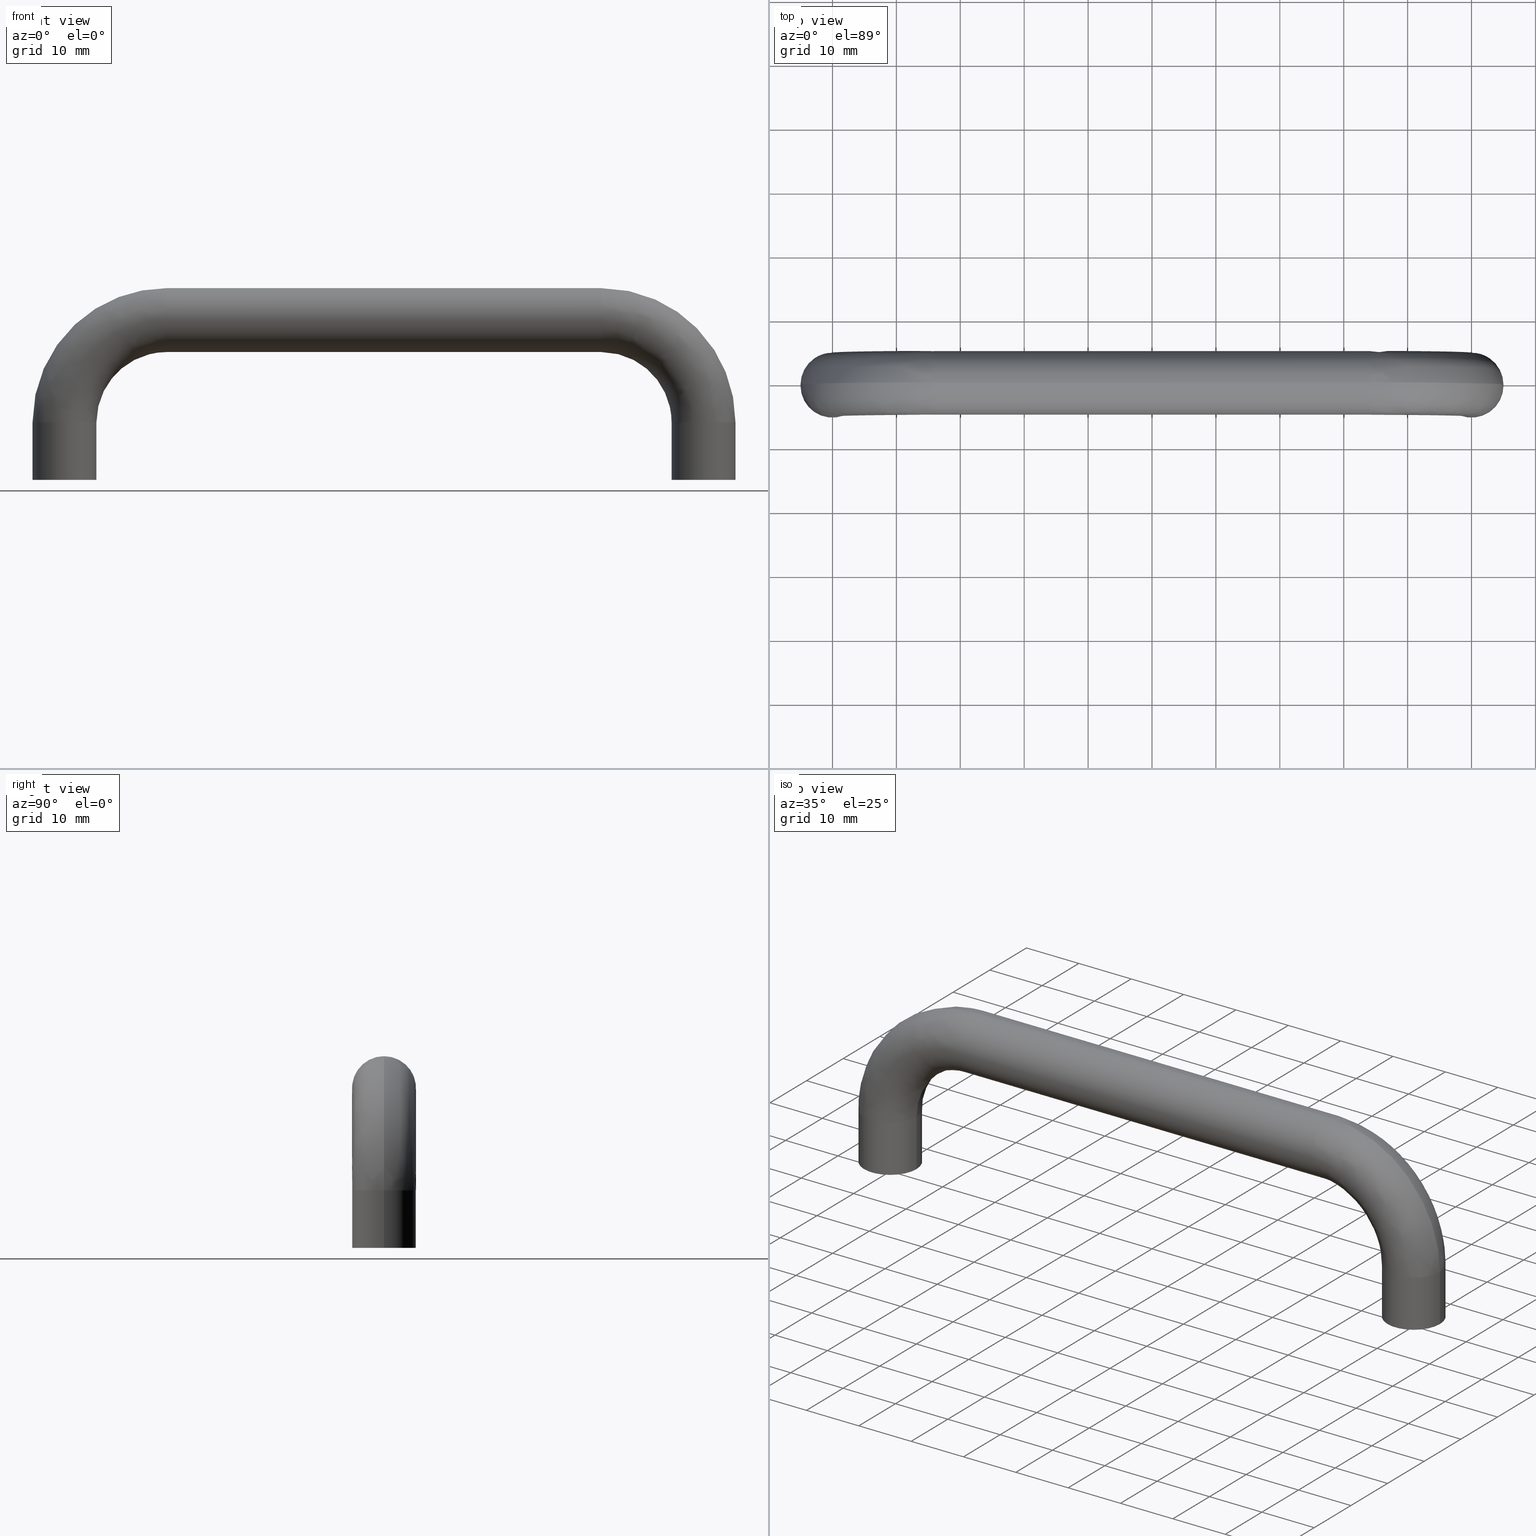
[diagram: canonical four-view strip — front | top / right | iso, engineering-drawing reading convention]
A machine part, canonical four-view strip (front | top / right | iso — engineering-drawing reading convention). The complete STEP part file that produces these views, byte-faithful:
ISO-10303-21;
HEADER;

FILE_DESCRIPTION( (''), '2;1');
FILE_NAME ('PC50.1864.THA_31SUS_7_TAP_4049.stp','2021-09-06T11:38:39',(''),(''),'spGate 17.5.2','','');

FILE_SCHEMA (('AUTOMOTIVE_DESIGN'));
ENDSEC;

DATA;
#10=(GEOMETRIC_REPRESENTATION_CONTEXT(3) GLOBAL_UNCERTAINTY_ASSIGNED_CONTEXT((#11)) GLOBAL_UNIT_ASSIGNED_CONTEXT((#12,#13,#14)) REPRESENTATION_CONTEXT('ID1','3D'));
#11=UNCERTAINTY_MEASURE_WITH_UNIT(LENGTH_MEASURE(0.01),#15,'DISTANCE_ACCURACY_VALUE','Maximum model space distance between geometric entities at asserted connectivities');
#12=(NAMED_UNIT(*) SI_UNIT($,.STERADIAN.) SOLID_ANGLE_UNIT());
#13=(CONVERSION_BASED_UNIT('DEGREE',#16) NAMED_UNIT(#17) PLANE_ANGLE_UNIT());
#14=(LENGTH_UNIT() NAMED_UNIT(*) SI_UNIT(.MILLI.,.METRE.));
#15=(LENGTH_UNIT() NAMED_UNIT(*) SI_UNIT(.MILLI.,.METRE.));
#16=PLANE_ANGLE_MEASURE_WITH_UNIT(PLANE_ANGLE_MEASURE(0.01745329252),#18);
#17=DIMENSIONAL_EXPONENTS(0.0,0.0,0.0,0.0,0.0,0.0,0.0);
#18=(NAMED_UNIT(*) PLANE_ANGLE_UNIT() SI_UNIT($,.RADIAN.));
#19=MANIFOLD_SOLID_BREP('THA_31SUS_7_TAP',#31);
#20=ADVANCED_BREP_SHAPE_REPRESENTATION('',(#19),#10);
#21=APPLICATION_CONTEXT('');
#22=APPLICATION_PROTOCOL_DEFINITION('International Standard','automotive_design',1999,#21);
#23=PRODUCT_DEFINITION_CONTEXT('',#21,'design');
#24=PRODUCT_CONTEXT('',#21,'mechanical');
#25=PRODUCT('','','',(#24));
#26=PRODUCT_DEFINITION_FORMATION_WITH_SPECIFIED_SOURCE('','',#25,.NOT_KNOWN.);
#27=PRODUCT_RELATED_PRODUCT_CATEGORY('tool','tool',(#25));
#28=PRODUCT_DEFINITION('','',#26,#23);
#29=PRODUCT_DEFINITION_SHAPE('','',#28);
#30=SHAPE_DEFINITION_REPRESENTATION(#29,#20);
#31=CLOSED_SHELL('',(#40,#41,#42,#43,#44,#45,#46,#47,#48,#49,#50,#51,#52,#53,#54,#55,#56,#57));
#32=COLOUR_RGB('',0.00000000000E+00,0.00000000000E+00,0.00000000000E+00);
#33=FILL_AREA_STYLE_COLOUR('',#32);
#34=FILL_AREA_STYLE('',(#33));
#35=SURFACE_STYLE_FILL_AREA(#34);
#36=SURFACE_SIDE_STYLE('',(#35));
#37=SURFACE_STYLE_USAGE(.BOTH.,#36);
#38=PRESENTATION_STYLE_ASSIGNMENT((#37));
#39=STYLED_ITEM('',(#38),#19);
#40=ADVANCED_FACE('',(#59,#60),#58,.F.);
#41=ADVANCED_FACE('',(#70),#69,.F.);
#42=ADVANCED_FACE('',(#80),#79,.F.);
#43=ADVANCED_FACE('',(#90,#91),#89,.F.);
#44=ADVANCED_FACE('',(#101),#100,.T.);
#45=ADVANCED_FACE('',(#111),#110,.T.);
#46=ADVANCED_FACE('',(#121),#120,.T.);
#47=ADVANCED_FACE('',(#131),#130,.T.);
#48=ADVANCED_FACE('',(#141),#140,.T.);
#49=ADVANCED_FACE('',(#151),#150,.T.);
#50=ADVANCED_FACE('',(#161),#160,.T.);
#51=ADVANCED_FACE('',(#171),#170,.T.);
#52=ADVANCED_FACE('',(#181),#180,.F.);
#53=ADVANCED_FACE('',(#191),#190,.F.);
#54=ADVANCED_FACE('',(#201),#200,.T.);
#55=ADVANCED_FACE('',(#211),#210,.T.);
#56=ADVANCED_FACE('',(#221),#220,.F.);
#57=ADVANCED_FACE('',(#231),#230,.F.);
#58=PLANE('',#243);
#59=FACE_OUTER_BOUND('',#244,.T.);
#60=FACE_BOUND('',#245,.T.);
#61=COLOUR_RGB('',1.00000000000E+00,1.00000000000E+00,1.00000000000E+00);
#62=FILL_AREA_STYLE_COLOUR('',#61);
#63=FILL_AREA_STYLE('',(#62));
#64=SURFACE_STYLE_FILL_AREA(#63);
#65=SURFACE_SIDE_STYLE('',(#64));
#66=SURFACE_STYLE_USAGE(.BOTH.,#65);
#67=PRESENTATION_STYLE_ASSIGNMENT((#66));
#68=STYLED_ITEM('',(#67),#40);
#69=PLANE('',#249);
#70=FACE_OUTER_BOUND('',#250,.T.);
#71=COLOUR_RGB('',1.00000000000E+00,1.00000000000E+00,1.00000000000E+00);
#72=FILL_AREA_STYLE_COLOUR('',#71);
#73=FILL_AREA_STYLE('',(#72));
#74=SURFACE_STYLE_FILL_AREA(#73);
#75=SURFACE_SIDE_STYLE('',(#74));
#76=SURFACE_STYLE_USAGE(.BOTH.,#75);
#77=PRESENTATION_STYLE_ASSIGNMENT((#76));
#78=STYLED_ITEM('',(#77),#41);
#79=PLANE('',#254);
#80=FACE_OUTER_BOUND('',#255,.T.);
#81=COLOUR_RGB('',1.00000000000E+00,1.00000000000E+00,1.00000000000E+00);
#82=FILL_AREA_STYLE_COLOUR('',#81);
#83=FILL_AREA_STYLE('',(#82));
#84=SURFACE_STYLE_FILL_AREA(#83);
#85=SURFACE_SIDE_STYLE('',(#84));
#86=SURFACE_STYLE_USAGE(.BOTH.,#85);
#87=PRESENTATION_STYLE_ASSIGNMENT((#86));
#88=STYLED_ITEM('',(#87),#42);
#89=PLANE('',#259);
#90=FACE_OUTER_BOUND('',#260,.T.);
#91=FACE_BOUND('',#261,.T.);
#92=COLOUR_RGB('',1.00000000000E+00,1.00000000000E+00,1.00000000000E+00);
#93=FILL_AREA_STYLE_COLOUR('',#92);
#94=FILL_AREA_STYLE('',(#93));
#95=SURFACE_STYLE_FILL_AREA(#94);
#96=SURFACE_SIDE_STYLE('',(#95));
#97=SURFACE_STYLE_USAGE(.BOTH.,#96);
#98=PRESENTATION_STYLE_ASSIGNMENT((#97));
#99=STYLED_ITEM('',(#98),#43);
#100=( BOUNDED_SURFACE() B_SPLINE_SURFACE( 2,2,((#262,#263,#264,#265,#266),(#267,#268,#269,#270,#271),(#272,#273,#274,#275,#276),(#277,#278,#279,#280,#281),(#282,#283,#284,#285,#286)), .UNSPECIFIED.,.F.,.F.,.F.) B_SPLINE_SURFACE_WITH_KNOTS((3,2,3),(3,2,3),(-3.14159265359E+00,-1.57079632679E+00,0.00000000000E+00),(2.35619449019E+00,3.14159265359E+00,3.92699081699E+00), .UNSPECIFIED. ) GEOMETRIC_REPRESENTATION_ITEM() RATIONAL_B_SPLINE_SURFACE(((8.53553390593E-01,8.53553390593E-01,1.00000000000E+00,8.53553390593E-01,8.53553390593E-01),(6.03553390593E-01,6.03553390593E-01,7.07106781187E-01,6.03553390593E-01,6.03553390593E-01),(8.53553390593E-01,8.53553390593E-01,1.00000000000E+00,8.53553390593E-01,8.53553390593E-01),(6.03553390593E-01,6.03553390593E-01,7.07106781187E-01,6.03553390593E-01,6.03553390593E-01),(8.53553390593E-01,8.53553390593E-01,1.00000000000E+00,8.53553390593E-01,8.53553390593E-01))) REPRESENTATION_ITEM('') SURFACE() );
#101=FACE_OUTER_BOUND('',#287,.T.);
#102=COLOUR_RGB('',1.00000000000E+00,1.00000000000E+00,1.00000000000E+00);
#103=FILL_AREA_STYLE_COLOUR('',#102);
#104=FILL_AREA_STYLE('',(#103));
#105=SURFACE_STYLE_FILL_AREA(#104);
#106=SURFACE_SIDE_STYLE('',(#105));
#107=SURFACE_STYLE_USAGE(.BOTH.,#106);
#108=PRESENTATION_STYLE_ASSIGNMENT((#107));
#109=STYLED_ITEM('',(#108),#44);
#110=( BOUNDED_SURFACE() B_SPLINE_SURFACE( 2,2,((#288,#289,#290,#291,#292),(#293,#294,#295,#296,#297),(#298,#299,#300,#301,#302),(#303,#304,#305,#306,#307),(#308,#309,#310,#311,#312)), .UNSPECIFIED.,.F.,.F.,.F.) B_SPLINE_SURFACE_WITH_KNOTS((3,2,3),(3,2,3),(0.00000000000E+00,1.57079632679E+00,3.14159265359E+00),(2.35619449019E+00,3.14159265359E+00,3.92699081699E+00), .UNSPECIFIED. ) GEOMETRIC_REPRESENTATION_ITEM() RATIONAL_B_SPLINE_SURFACE(((8.53553390593E-01,8.53553390593E-01,1.00000000000E+00,8.53553390593E-01,8.53553390593E-01),(6.03553390593E-01,6.03553390593E-01,7.07106781187E-01,6.03553390593E-01,6.03553390593E-01),(8.53553390593E-01,8.53553390593E-01,1.00000000000E+00,8.53553390593E-01,8.53553390593E-01),(6.03553390593E-01,6.03553390593E-01,7.07106781187E-01,6.03553390593E-01,6.03553390593E-01),(8.53553390593E-01,8.53553390593E-01,1.00000000000E+00,8.53553390593E-01,8.53553390593E-01))) REPRESENTATION_ITEM('') SURFACE() );
#111=FACE_OUTER_BOUND('',#313,.T.);
#112=COLOUR_RGB('',1.00000000000E+00,1.00000000000E+00,1.00000000000E+00);
#113=FILL_AREA_STYLE_COLOUR('',#112);
#114=FILL_AREA_STYLE('',(#113));
#115=SURFACE_STYLE_FILL_AREA(#114);
#116=SURFACE_SIDE_STYLE('',(#115));
#117=SURFACE_STYLE_USAGE(.BOTH.,#116);
#118=PRESENTATION_STYLE_ASSIGNMENT((#117));
#119=STYLED_ITEM('',(#118),#45);
#120=CYLINDRICAL_SURFACE('',#317,5.00000000000E+00);
#121=FACE_OUTER_BOUND('',#318,.T.);
#122=COLOUR_RGB('',1.00000000000E+00,1.00000000000E+00,1.00000000000E+00);
#123=FILL_AREA_STYLE_COLOUR('',#122);
#124=FILL_AREA_STYLE('',(#123));
#125=SURFACE_STYLE_FILL_AREA(#124);
#126=SURFACE_SIDE_STYLE('',(#125));
#127=SURFACE_STYLE_USAGE(.BOTH.,#126);
#128=PRESENTATION_STYLE_ASSIGNMENT((#127));
#129=STYLED_ITEM('',(#128),#46);
#130=CYLINDRICAL_SURFACE('',#322,5.00000000000E+00);
#131=FACE_OUTER_BOUND('',#323,.T.);
#132=COLOUR_RGB('',1.00000000000E+00,1.00000000000E+00,1.00000000000E+00);
#133=FILL_AREA_STYLE_COLOUR('',#132);
#134=FILL_AREA_STYLE('',(#133));
#135=SURFACE_STYLE_FILL_AREA(#134);
#136=SURFACE_SIDE_STYLE('',(#135));
#137=SURFACE_STYLE_USAGE(.BOTH.,#136);
#138=PRESENTATION_STYLE_ASSIGNMENT((#137));
#139=STYLED_ITEM('',(#138),#47);
#140=( BOUNDED_SURFACE() B_SPLINE_SURFACE( 2,2,((#324,#325,#326,#327,#328,#329,#330),(#331,#332,#333,#334,#335,#336,#337),(#338,#339,#340,#341,#342,#343,#344),(#345,#346,#347,#348,#349,#350,#351),(#352,#353,#354,#355,#356,#357,#358)), .UNSPECIFIED.,.F.,.F.,.F.) B_SPLINE_SURFACE_WITH_KNOTS((3,2,3),(3,2,2,3),(-3.14159265359E+00,-1.57079632679E+00,0.00000000000E+00),(1.56981901998E+00,1.57079632679E+00,3.14159265359E+00,3.14256996040E+00), .UNSPECIFIED. ) GEOMETRIC_REPRESENTATION_ITEM() RATIONAL_B_SPLINE_SURFACE(((9.99635766346E-01,9.99817769794E-01,1.00000000000E+00,7.07106781187E-01,1.00000000000E+00,9.99817769794E-01,9.99635766346E-01),(7.06849229100E-01,7.06977924972E-01,7.07106781187E-01,5.00000000000E-01,7.07106781187E-01,7.06977924972E-01,7.06849229100E-01),(9.99635766346E-01,9.99817769794E-01,1.00000000000E+00,7.07106781187E-01,1.00000000000E+00,9.99817769794E-01,9.99635766346E-01),(7.06849229100E-01,7.06977924972E-01,7.07106781187E-01,5.00000000000E-01,7.07106781187E-01,7.06977924972E-01,7.06849229100E-01),(9.99635766346E-01,9.99817769794E-01,1.00000000000E+00,7.07106781187E-01,1.00000000000E+00,9.99817769794E-01,9.99635766346E-01))) REPRESENTATION_ITEM('') SURFACE() );
#141=FACE_OUTER_BOUND('',#359,.T.);
#142=COLOUR_RGB('',1.00000000000E+00,1.00000000000E+00,1.00000000000E+00);
#143=FILL_AREA_STYLE_COLOUR('',#142);
#144=FILL_AREA_STYLE('',(#143));
#145=SURFACE_STYLE_FILL_AREA(#144);
#146=SURFACE_SIDE_STYLE('',(#145));
#147=SURFACE_STYLE_USAGE(.BOTH.,#146);
#148=PRESENTATION_STYLE_ASSIGNMENT((#147));
#149=STYLED_ITEM('',(#148),#48);
#150=( BOUNDED_SURFACE() B_SPLINE_SURFACE( 2,2,((#360,#361,#362,#363,#364,#365,#366),(#367,#368,#369,#370,#371,#372,#373),(#374,#375,#376,#377,#378,#379,#380),(#381,#382,#383,#384,#385,#386,#387),(#388,#389,#390,#391,#392,#393,#394)), .UNSPECIFIED.,.F.,.F.,.F.) B_SPLINE_SURFACE_WITH_KNOTS((3,2,3),(3,2,2,3),(0.00000000000E+00,1.57079632679E+00,3.14159265359E+00),(1.56981901998E+00,1.57079632679E+00,3.14159265359E+00,3.14256996040E+00), .UNSPECIFIED. ) GEOMETRIC_REPRESENTATION_ITEM() RATIONAL_B_SPLINE_SURFACE(((9.99635766346E-01,9.99817769794E-01,1.00000000000E+00,7.07106781187E-01,1.00000000000E+00,9.99817769794E-01,9.99635766346E-01),(7.06849229100E-01,7.06977924972E-01,7.07106781187E-01,5.00000000000E-01,7.07106781187E-01,7.06977924972E-01,7.06849229100E-01),(9.99635766346E-01,9.99817769794E-01,1.00000000000E+00,7.07106781187E-01,1.00000000000E+00,9.99817769794E-01,9.99635766346E-01),(7.06849229100E-01,7.06977924972E-01,7.07106781187E-01,5.00000000000E-01,7.07106781187E-01,7.06977924972E-01,7.06849229100E-01),(9.99635766346E-01,9.99817769794E-01,1.00000000000E+00,7.07106781187E-01,1.00000000000E+00,9.99817769794E-01,9.99635766346E-01))) REPRESENTATION_ITEM('') SURFACE() );
#151=FACE_OUTER_BOUND('',#395,.T.);
#152=COLOUR_RGB('',1.00000000000E+00,1.00000000000E+00,1.00000000000E+00);
#153=FILL_AREA_STYLE_COLOUR('',#152);
#154=FILL_AREA_STYLE('',(#153));
#155=SURFACE_STYLE_FILL_AREA(#154);
#156=SURFACE_SIDE_STYLE('',(#155));
#157=SURFACE_STYLE_USAGE(.BOTH.,#156);
#158=PRESENTATION_STYLE_ASSIGNMENT((#157));
#159=STYLED_ITEM('',(#158),#49);
#160=CYLINDRICAL_SURFACE('',#399,5.00000000000E+00);
#161=FACE_OUTER_BOUND('',#400,.T.);
#162=COLOUR_RGB('',1.00000000000E+00,1.00000000000E+00,1.00000000000E+00);
#163=FILL_AREA_STYLE_COLOUR('',#162);
#164=FILL_AREA_STYLE('',(#163));
#165=SURFACE_STYLE_FILL_AREA(#164);
#166=SURFACE_SIDE_STYLE('',(#165));
#167=SURFACE_STYLE_USAGE(.BOTH.,#166);
#168=PRESENTATION_STYLE_ASSIGNMENT((#167));
#169=STYLED_ITEM('',(#168),#50);
#170=CYLINDRICAL_SURFACE('',#404,5.00000000000E+00);
#171=FACE_OUTER_BOUND('',#405,.T.);
#172=COLOUR_RGB('',1.00000000000E+00,1.00000000000E+00,1.00000000000E+00);
#173=FILL_AREA_STYLE_COLOUR('',#172);
#174=FILL_AREA_STYLE('',(#173));
#175=SURFACE_STYLE_FILL_AREA(#174);
#176=SURFACE_SIDE_STYLE('',(#175));
#177=SURFACE_STYLE_USAGE(.BOTH.,#176);
#178=PRESENTATION_STYLE_ASSIGNMENT((#177));
#179=STYLED_ITEM('',(#178),#51);
#180=CYLINDRICAL_SURFACE('',#409,2.50000000000E+00);
#181=FACE_OUTER_BOUND('',#410,.T.);
#182=COLOUR_RGB('',1.00000000000E+00,1.00000000000E+00,1.00000000000E+00);
#183=FILL_AREA_STYLE_COLOUR('',#182);
#184=FILL_AREA_STYLE('',(#183));
#185=SURFACE_STYLE_FILL_AREA(#184);
#186=SURFACE_SIDE_STYLE('',(#185));
#187=SURFACE_STYLE_USAGE(.BOTH.,#186);
#188=PRESENTATION_STYLE_ASSIGNMENT((#187));
#189=STYLED_ITEM('',(#188),#52);
#190=CYLINDRICAL_SURFACE('',#414,2.50000000000E+00);
#191=FACE_OUTER_BOUND('',#415,.T.);
#192=COLOUR_RGB('',1.00000000000E+00,1.00000000000E+00,1.00000000000E+00);
#193=FILL_AREA_STYLE_COLOUR('',#192);
#194=FILL_AREA_STYLE('',(#193));
#195=SURFACE_STYLE_FILL_AREA(#194);
#196=SURFACE_SIDE_STYLE('',(#195));
#197=SURFACE_STYLE_USAGE(.BOTH.,#196);
#198=PRESENTATION_STYLE_ASSIGNMENT((#197));
#199=STYLED_ITEM('',(#198),#53);
#200=CYLINDRICAL_SURFACE('',#419,5.00000000000E+00);
#201=FACE_OUTER_BOUND('',#420,.T.);
#202=COLOUR_RGB('',1.00000000000E+00,1.00000000000E+00,1.00000000000E+00);
#203=FILL_AREA_STYLE_COLOUR('',#202);
#204=FILL_AREA_STYLE('',(#203));
#205=SURFACE_STYLE_FILL_AREA(#204);
#206=SURFACE_SIDE_STYLE('',(#205));
#207=SURFACE_STYLE_USAGE(.BOTH.,#206);
#208=PRESENTATION_STYLE_ASSIGNMENT((#207));
#209=STYLED_ITEM('',(#208),#54);
#210=CYLINDRICAL_SURFACE('',#424,5.00000000000E+00);
#211=FACE_OUTER_BOUND('',#425,.T.);
#212=COLOUR_RGB('',1.00000000000E+00,1.00000000000E+00,1.00000000000E+00);
#213=FILL_AREA_STYLE_COLOUR('',#212);
#214=FILL_AREA_STYLE('',(#213));
#215=SURFACE_STYLE_FILL_AREA(#214);
#216=SURFACE_SIDE_STYLE('',(#215));
#217=SURFACE_STYLE_USAGE(.BOTH.,#216);
#218=PRESENTATION_STYLE_ASSIGNMENT((#217));
#219=STYLED_ITEM('',(#218),#55);
#220=CYLINDRICAL_SURFACE('',#429,2.50000000000E+00);
#221=FACE_OUTER_BOUND('',#430,.T.);
#222=COLOUR_RGB('',1.00000000000E+00,1.00000000000E+00,1.00000000000E+00);
#223=FILL_AREA_STYLE_COLOUR('',#222);
#224=FILL_AREA_STYLE('',(#223));
#225=SURFACE_STYLE_FILL_AREA(#224);
#226=SURFACE_SIDE_STYLE('',(#225));
#227=SURFACE_STYLE_USAGE(.BOTH.,#226);
#228=PRESENTATION_STYLE_ASSIGNMENT((#227));
#229=STYLED_ITEM('',(#228),#56);
#230=CYLINDRICAL_SURFACE('',#434,2.50000000000E+00);
#231=FACE_OUTER_BOUND('',#435,.T.);
#232=COLOUR_RGB('',1.00000000000E+00,1.00000000000E+00,1.00000000000E+00);
#233=FILL_AREA_STYLE_COLOUR('',#232);
#234=FILL_AREA_STYLE('',(#233));
#235=SURFACE_STYLE_FILL_AREA(#234);
#236=SURFACE_SIDE_STYLE('',(#235));
#237=SURFACE_STYLE_USAGE(.BOTH.,#236);
#238=PRESENTATION_STYLE_ASSIGNMENT((#237));
#239=STYLED_ITEM('',(#238),#57);
#240=CARTESIAN_POINT('',(4.35000000000E+01,-1.03923048455E+01,-2.00000000000E+01));
#241=DIRECTION('',(0.00000000000E+00,0.00000000000E+00,1.00000000000E+00));
#242=DIRECTION('',(1.00000000000E+00,0.00000000000E+00,-0.00000000000E+00));
#243=AXIS2_PLACEMENT_3D('',#240,#241,#242);
#244=EDGE_LOOP('',(#436,#437));
#245=EDGE_LOOP('',(#438,#439));
#246=CARTESIAN_POINT('',(-4.42500000000E+01,5.19615242276E+00,-9.00000000000E+00));
#247=DIRECTION('',(0.00000000000E+00,0.00000000000E+00,1.00000000000E+00));
#248=DIRECTION('',(-1.00000000000E+00,0.00000000000E+00,0.00000000000E+00));
#249=AXIS2_PLACEMENT_3D('',#246,#247,#248);
#250=EDGE_LOOP('',(#440,#441));
#251=CARTESIAN_POINT('',(4.67500000000E+01,-5.19615242265E+00,-9.00000000000E+00));
#252=DIRECTION('',(0.00000000000E+00,-0.00000000000E+00,1.00000000000E+00));
#253=DIRECTION('',(1.00000000000E+00,0.00000000000E+00,0.00000000000E+00));
#254=AXIS2_PLACEMENT_3D('',#251,#252,#253);
#255=EDGE_LOOP('',(#442,#443));
#256=CARTESIAN_POINT('',(-3.85000000000E+01,1.03923048453E+01,-2.00000000000E+01));
#257=DIRECTION('',(0.00000000000E+00,0.00000000000E+00,1.00000000000E+00));
#258=DIRECTION('',(-1.00000000000E+00,0.00000000000E+00,0.00000000000E+00));
#259=AXIS2_PLACEMENT_3D('',#256,#257,#258);
#260=EDGE_LOOP('',(#444,#445));
#261=EDGE_LOOP('',(#446,#447));
#262=CARTESIAN_POINT('',(-4.50000000000E+01,-9.33678950984E-11,-1.10000000000E+01));
#263=CARTESIAN_POINT('',(-4.50000000000E+01,-9.33651317356E-11,-6.44365081390E+00));
#264=CARTESIAN_POINT('',(-4.17781745931E+01,-9.33639871133E-11,-3.22182540696E+00));
#265=CARTESIAN_POINT('',(-3.85563491861E+01,-9.33628424910E-11,1.55876748587E-12));
#266=CARTESIAN_POINT('',(-3.40000000000E+01,-9.33639871133E-11,1.55668635438E-12));
#267=CARTESIAN_POINT('',(-4.50000000000E+01,4.99999999991E+00,-1.10000000000E+01));
#268=CARTESIAN_POINT('',(-4.50000000000E+01,4.99999999991E+00,-6.44365081390E+00));
#269=CARTESIAN_POINT('',(-4.17781745931E+01,4.99999999991E+00,-3.22182540696E+00));
#270=CARTESIAN_POINT('',(-3.85563491861E+01,4.99999999991E+00,1.55399079157E-12));
#271=CARTESIAN_POINT('',(-3.40000000000E+01,4.99999999991E+00,1.55104762719E-12));
#272=CARTESIAN_POINT('',(-5.00000000000E+01,4.99999999991E+00,-1.10000000000E+01));
#273=CARTESIAN_POINT('',(-5.00000000000E+01,4.99999999991E+00,-4.37258300204E+00));
#274=CARTESIAN_POINT('',(-4.53137084990E+01,4.99999999991E+00,3.13708498972E-01));
#275=CARTESIAN_POINT('',(-4.06274169980E+01,4.99999999991E+00,5.00000000000E+00));
#276=CARTESIAN_POINT('',(-3.40000000000E+01,4.99999999991E+00,5.00000000000E+00));
#277=CARTESIAN_POINT('',(-5.50000000000E+01,4.99999999991E+00,-1.10000000000E+01));
#278=CARTESIAN_POINT('',(-5.50000000000E+01,4.99999999991E+00,-2.30151519018E+00));
#279=CARTESIAN_POINT('',(-4.88492424049E+01,4.99999999991E+00,3.84924240490E+00));
#280=CARTESIAN_POINT('',(-4.26984848098E+01,4.99999999991E+00,1.00000000000E+01));
#281=CARTESIAN_POINT('',(-3.40000000000E+01,4.99999999991E+00,1.00000000000E+01));
#282=CARTESIAN_POINT('',(-5.50000000000E+01,-9.33659952536E-11,-1.10000000000E+01));
#283=CARTESIAN_POINT('',(-5.50000000000E+01,-9.33607197429E-11,-2.30151519018E+00));
#284=CARTESIAN_POINT('',(-4.88492424049E+01,-9.33585345549E-11,3.84924240490E+00));
#285=CARTESIAN_POINT('',(-4.26984848098E+01,-9.33563493668E-11,1.00000000000E+01));
#286=CARTESIAN_POINT('',(-3.40000000000E+01,-9.33585345549E-11,1.00000000000E+01));
#287=EDGE_LOOP('',(#448,#449,#450,#451));
#288=CARTESIAN_POINT('',(-5.50000000000E+01,-9.33659952536E-11,-1.10000000000E+01));
#289=CARTESIAN_POINT('',(-5.50000000000E+01,-9.33607197429E-11,-2.30151519018E+00));
#290=CARTESIAN_POINT('',(-4.88492424049E+01,-9.33585345549E-11,3.84924240490E+00));
#291=CARTESIAN_POINT('',(-4.26984848098E+01,-9.33563493668E-11,1.00000000000E+01));
#292=CARTESIAN_POINT('',(-3.40000000000E+01,-9.33585345549E-11,1.00000000000E+01));
#293=CARTESIAN_POINT('',(-5.50000000000E+01,-5.00000000009E+00,-1.10000000000E+01));
#294=CARTESIAN_POINT('',(-5.50000000000E+01,-5.00000000009E+00,-2.30151519018E+00));
#295=CARTESIAN_POINT('',(-4.88492424049E+01,-5.00000000009E+00,3.84924240490E+00));
#296=CARTESIAN_POINT('',(-4.26984848098E+01,-5.00000000009E+00,1.00000000000E+01));
#297=CARTESIAN_POINT('',(-3.40000000000E+01,-5.00000000009E+00,1.00000000000E+01));
#298=CARTESIAN_POINT('',(-5.00000000000E+01,-5.00000000009E+00,-1.10000000000E+01));
#299=CARTESIAN_POINT('',(-5.00000000000E+01,-5.00000000009E+00,-4.37258300204E+00));
#300=CARTESIAN_POINT('',(-4.53137084990E+01,-5.00000000009E+00,3.13708498972E-01));
#301=CARTESIAN_POINT('',(-4.06274169980E+01,-5.00000000009E+00,5.00000000000E+00));
#302=CARTESIAN_POINT('',(-3.40000000000E+01,-5.00000000009E+00,5.00000000000E+00));
#303=CARTESIAN_POINT('',(-4.50000000000E+01,-5.00000000009E+00,-1.10000000000E+01));
#304=CARTESIAN_POINT('',(-4.50000000000E+01,-5.00000000009E+00,-6.44365081390E+00));
#305=CARTESIAN_POINT('',(-4.17781745931E+01,-5.00000000009E+00,-3.22182540696E+00));
#306=CARTESIAN_POINT('',(-3.85563491861E+01,-5.00000000009E+00,1.55840553814E-12));
#307=CARTESIAN_POINT('',(-3.40000000000E+01,-5.00000000009E+00,1.55987712033E-12));
#308=CARTESIAN_POINT('',(-4.50000000000E+01,-9.33691197047E-11,-1.10000000000E+01));
#309=CARTESIAN_POINT('',(-4.50000000000E+01,-9.33663563420E-11,-6.44365081390E+00));
#310=CARTESIAN_POINT('',(-4.17781745931E+01,-9.33652117197E-11,-3.22182540696E+00));
#311=CARTESIAN_POINT('',(-3.85563491861E+01,-9.33640670973E-11,1.55460522289E-12));
#312=CARTESIAN_POINT('',(-3.40000000000E+01,-9.33652117197E-11,1.55668635438E-12));
#313=EDGE_LOOP('',(#452,#453,#454,#455));
#314=CARTESIAN_POINT('',(0.00000000000E+00,-9.33367966249E-11,5.00000000000E+00));
#315=DIRECTION('',(1.00000000000E+00,-0.00000000000E+00,-0.00000000000E+00));
#316=DIRECTION('',(-0.00000000000E+00,-0.00000000000E+00,-1.00000000000E+00));
#317=AXIS2_PLACEMENT_3D('',#314,#315,#316);
#318=EDGE_LOOP('',(#456,#457,#458,#459));
#319=CARTESIAN_POINT('',(0.00000000000E+00,-9.33367966249E-11,5.00000000000E+00));
#320=DIRECTION('',(1.00000000000E+00,-0.00000000000E+00,-0.00000000000E+00));
#321=DIRECTION('',(-0.00000000000E+00,-0.00000000000E+00,-1.00000000000E+00));
#322=AXIS2_PLACEMENT_3D('',#319,#320,#321);
#323=EDGE_LOOP('',(#460,#461,#462,#463));
#324=CARTESIAN_POINT('',(3.39903194999E+01,-9.33768227942E-11,-4.25972035266E-06));
#325=CARTESIAN_POINT('',(3.39951597491E+01,-9.33768227942E-11,-7.93711755164E-11));
#326=CARTESIAN_POINT('',(3.40000000001E+01,-9.33768227942E-11,-7.93711762981E-11));
#327=CARTESIAN_POINT('',(4.50000000000E+01,-9.33768227942E-11,-7.93729526549E-11));
#328=CARTESIAN_POINT('',(4.50000000000E+01,-9.33768227942E-11,-1.10000000000E+01));
#329=CARTESIAN_POINT('',(4.50000000000E+01,-9.33768227942E-11,-1.10048402510E+01));
#330=CARTESIAN_POINT('',(4.49999957404E+01,-9.33768227942E-11,-1.10096805002E+01));
#331=CARTESIAN_POINT('',(3.39903194999E+01,4.99999999991E+00,-4.25972035266E-06));
#332=CARTESIAN_POINT('',(3.39951597491E+01,4.99999999991E+00,-7.93711755164E-11));
#333=CARTESIAN_POINT('',(3.40000000001E+01,4.99999999991E+00,-7.93711762981E-11));
#334=CARTESIAN_POINT('',(4.50000000000E+01,4.99999999991E+00,-7.93729526549E-11));
#335=CARTESIAN_POINT('',(4.50000000000E+01,4.99999999991E+00,-1.10000000000E+01));
#336=CARTESIAN_POINT('',(4.50000000000E+01,4.99999999991E+00,-1.10048402510E+01));
#337=CARTESIAN_POINT('',(4.49999957404E+01,4.99999999991E+00,-1.10096805002E+01));
#338=CARTESIAN_POINT('',(3.39859192726E+01,4.99999999991E+00,4.99999380408E+00));
#339=CARTESIAN_POINT('',(3.39929596350E+01,4.99999999991E+00,4.99999999992E+00));
#340=CARTESIAN_POINT('',(3.40000000001E+01,4.99999999991E+00,4.99999999992E+00));
#341=CARTESIAN_POINT('',(5.00000000000E+01,4.99999999991E+00,4.99999999992E+00));
#342=CARTESIAN_POINT('',(5.00000000000E+01,4.99999999991E+00,-1.10000000000E+01));
#343=CARTESIAN_POINT('',(5.00000000000E+01,4.99999999991E+00,-1.10070403651E+01));
#344=CARTESIAN_POINT('',(4.99999938042E+01,4.99999999991E+00,-1.10140807275E+01));
#345=CARTESIAN_POINT('',(3.39815190452E+01,4.99999999991E+00,9.99999186788E+00));
#346=CARTESIAN_POINT('',(3.39907595209E+01,4.99999999991E+00,9.99999999992E+00));
#347=CARTESIAN_POINT('',(3.40000000001E+01,4.99999999991E+00,9.99999999992E+00));
#348=CARTESIAN_POINT('',(5.50000000000E+01,4.99999999991E+00,9.99999999992E+00));
#349=CARTESIAN_POINT('',(5.50000000000E+01,4.99999999991E+00,-1.10000000000E+01));
#350=CARTESIAN_POINT('',(5.50000000000E+01,4.99999999991E+00,-1.10092404792E+01));
#351=CARTESIAN_POINT('',(5.49999918680E+01,4.99999999991E+00,-1.10184809549E+01));
#352=CARTESIAN_POINT('',(3.39815190452E+01,-9.33774350974E-11,9.99999186788E+00));
#353=CARTESIAN_POINT('',(3.39907595209E+01,-9.33774350974E-11,9.99999999992E+00));
#354=CARTESIAN_POINT('',(3.40000000001E+01,-9.33774350974E-11,9.99999999992E+00));
#355=CARTESIAN_POINT('',(5.50000000000E+01,-9.33774350974E-11,9.99999999992E+00));
#356=CARTESIAN_POINT('',(5.50000000000E+01,-9.33774350974E-11,-1.10000000000E+01));
#357=CARTESIAN_POINT('',(5.50000000000E+01,-9.33774350974E-11,-1.10092404792E+01));
#358=CARTESIAN_POINT('',(5.49999918680E+01,-9.33774350974E-11,-1.10184809549E+01));
#359=EDGE_LOOP('',(#464,#465,#466,#467));
#360=CARTESIAN_POINT('',(3.39815190452E+01,-9.33774350974E-11,9.99999186788E+00));
#361=CARTESIAN_POINT('',(3.39907595209E+01,-9.33774350974E-11,9.99999999992E+00));
#362=CARTESIAN_POINT('',(3.40000000001E+01,-9.33774350974E-11,9.99999999992E+00));
#363=CARTESIAN_POINT('',(5.50000000000E+01,-9.33774350974E-11,9.99999999992E+00));
#364=CARTESIAN_POINT('',(5.50000000000E+01,-9.33774350974E-11,-1.10000000000E+01));
#365=CARTESIAN_POINT('',(5.50000000000E+01,-9.33774350974E-11,-1.10092404792E+01));
#366=CARTESIAN_POINT('',(5.49999918680E+01,-9.33774350974E-11,-1.10184809549E+01));
#367=CARTESIAN_POINT('',(3.39815190452E+01,-5.00000000009E+00,9.99999186788E+00));
#368=CARTESIAN_POINT('',(3.39907595209E+01,-5.00000000009E+00,9.99999999992E+00));
#369=CARTESIAN_POINT('',(3.40000000001E+01,-5.00000000009E+00,9.99999999992E+00));
#370=CARTESIAN_POINT('',(5.50000000000E+01,-5.00000000009E+00,9.99999999992E+00));
#371=CARTESIAN_POINT('',(5.50000000000E+01,-5.00000000009E+00,-1.10000000000E+01));
#372=CARTESIAN_POINT('',(5.50000000000E+01,-5.00000000009E+00,-1.10092404792E+01));
#373=CARTESIAN_POINT('',(5.49999918680E+01,-5.00000000009E+00,-1.10184809549E+01));
#374=CARTESIAN_POINT('',(3.39859192726E+01,-5.00000000009E+00,4.99999380408E+00));
#375=CARTESIAN_POINT('',(3.39929596350E+01,-5.00000000009E+00,4.99999999992E+00));
#376=CARTESIAN_POINT('',(3.40000000001E+01,-5.00000000009E+00,4.99999999992E+00));
#377=CARTESIAN_POINT('',(5.00000000000E+01,-5.00000000009E+00,4.99999999992E+00));
#378=CARTESIAN_POINT('',(5.00000000000E+01,-5.00000000009E+00,-1.10000000000E+01));
#379=CARTESIAN_POINT('',(5.00000000000E+01,-5.00000000009E+00,-1.10070403651E+01));
#380=CARTESIAN_POINT('',(4.99999938042E+01,-5.00000000009E+00,-1.10140807275E+01));
#381=CARTESIAN_POINT('',(3.39903194999E+01,-5.00000000009E+00,-4.25972035266E-06));
#382=CARTESIAN_POINT('',(3.39951597491E+01,-5.00000000009E+00,-7.93711755164E-11));
#383=CARTESIAN_POINT('',(3.40000000001E+01,-5.00000000009E+00,-7.93711762981E-11));
#384=CARTESIAN_POINT('',(4.50000000000E+01,-5.00000000009E+00,-7.93729526549E-11));
#385=CARTESIAN_POINT('',(4.50000000000E+01,-5.00000000009E+00,-1.10000000000E+01));
#386=CARTESIAN_POINT('',(4.50000000000E+01,-5.00000000009E+00,-1.10048402510E+01));
#387=CARTESIAN_POINT('',(4.49999957404E+01,-5.00000000009E+00,-1.10096805002E+01));
#388=CARTESIAN_POINT('',(3.39903194999E+01,-9.33780474005E-11,-4.25972035266E-06));
#389=CARTESIAN_POINT('',(3.39951597491E+01,-9.33780474005E-11,-7.93711755164E-11));
#390=CARTESIAN_POINT('',(3.40000000001E+01,-9.33780474005E-11,-7.93711762981E-11));
#391=CARTESIAN_POINT('',(4.50000000000E+01,-9.33780474005E-11,-7.93729526549E-11));
#392=CARTESIAN_POINT('',(4.50000000000E+01,-9.33780474005E-11,-1.10000000000E+01));
#393=CARTESIAN_POINT('',(4.50000000000E+01,-9.33780474005E-11,-1.10048402510E+01));
#394=CARTESIAN_POINT('',(4.49999957404E+01,-9.33780474005E-11,-1.10096805002E+01));
#395=EDGE_LOOP('',(#468,#469,#470,#471));
#396=CARTESIAN_POINT('',(5.00000000000E+01,-9.33367966249E-11,-1.55000000000E+01));
#397=DIRECTION('',(-0.00000000000E+00,0.00000000000E+00,-1.00000000000E+00));
#398=DIRECTION('',(-1.00000000000E+00,-4.44089209850E-16,0.00000000000E+00));
#399=AXIS2_PLACEMENT_3D('',#396,#397,#398);
#400=EDGE_LOOP('',(#472,#473,#474,#475));
#401=CARTESIAN_POINT('',(5.00000000000E+01,-9.33367966249E-11,-1.55000000000E+01));
#402=DIRECTION('',(-0.00000000000E+00,0.00000000000E+00,-1.00000000000E+00));
#403=DIRECTION('',(-1.00000000000E+00,-4.44089209850E-16,0.00000000000E+00));
#404=AXIS2_PLACEMENT_3D('',#401,#402,#403);
#405=EDGE_LOOP('',(#476,#477,#478,#479));
#406=CARTESIAN_POINT('',(5.00000000000E+01,5.54507550987E-11,-1.45000000000E+01));
#407=DIRECTION('',(-0.00000000000E+00,-0.00000000000E+00,-1.00000000000E+00));
#408=DIRECTION('',(1.00000000000E+00,-1.22464679915E-16,-0.00000000000E+00));
#409=AXIS2_PLACEMENT_3D('',#406,#407,#408);
#410=EDGE_LOOP('',(#480,#481,#482,#483));
#411=CARTESIAN_POINT('',(5.00000000000E+01,5.54507550987E-11,-1.45000000000E+01));
#412=DIRECTION('',(-0.00000000000E+00,-0.00000000000E+00,-1.00000000000E+00));
#413=DIRECTION('',(1.00000000000E+00,-1.22464679915E-16,-0.00000000000E+00));
#414=AXIS2_PLACEMENT_3D('',#411,#412,#413);
#415=EDGE_LOOP('',(#484,#485,#486,#487));
#416=CARTESIAN_POINT('',(-5.00000000000E+01,-9.33367966249E-11,-1.55000000000E+01));
#417=DIRECTION('',(0.00000000000E+00,-0.00000000000E+00,-1.00000000000E+00));
#418=DIRECTION('',(1.00000000000E+00,-2.64687485605E-28,0.00000000000E+00));
#419=AXIS2_PLACEMENT_3D('',#416,#417,#418);
#420=EDGE_LOOP('',(#488,#489,#490,#491));
#421=CARTESIAN_POINT('',(-5.00000000000E+01,-9.33367966249E-11,-1.55000000000E+01));
#422=DIRECTION('',(0.00000000000E+00,-0.00000000000E+00,-1.00000000000E+00));
#423=DIRECTION('',(1.00000000000E+00,-2.64687485605E-28,0.00000000000E+00));
#424=AXIS2_PLACEMENT_3D('',#421,#422,#423);
#425=EDGE_LOOP('',(#492,#493,#494,#495));
#426=CARTESIAN_POINT('',(-5.00000000000E+01,5.54507550987E-11,-1.45000000000E+01));
#427=DIRECTION('',(0.00000000000E+00,-0.00000000000E+00,-1.00000000000E+00));
#428=DIRECTION('',(1.00000000000E+00,-2.64687485605E-28,0.00000000000E+00));
#429=AXIS2_PLACEMENT_3D('',#426,#427,#428);
#430=EDGE_LOOP('',(#496,#497,#498,#499));
#431=CARTESIAN_POINT('',(-5.00000000000E+01,5.54507550987E-11,-1.45000000000E+01));
#432=DIRECTION('',(0.00000000000E+00,-0.00000000000E+00,-1.00000000000E+00));
#433=DIRECTION('',(1.00000000000E+00,-2.64687485605E-28,0.00000000000E+00));
#434=AXIS2_PLACEMENT_3D('',#431,#432,#433);
#435=EDGE_LOOP('',(#500,#501,#502,#503));
#436=ORIENTED_EDGE('',*,*,#504,.T.);
#437=ORIENTED_EDGE('',*,*,#505,.T.);
#438=ORIENTED_EDGE('',*,*,#506,.F.);
#439=ORIENTED_EDGE('',*,*,#507,.F.);
#440=ORIENTED_EDGE('',*,*,#508,.F.);
#441=ORIENTED_EDGE('',*,*,#509,.F.);
#442=ORIENTED_EDGE('',*,*,#510,.T.);
#443=ORIENTED_EDGE('',*,*,#511,.T.);
#444=ORIENTED_EDGE('',*,*,#512,.F.);
#445=ORIENTED_EDGE('',*,*,#513,.F.);
#446=ORIENTED_EDGE('',*,*,#514,.T.);
#447=ORIENTED_EDGE('',*,*,#515,.T.);
#448=ORIENTED_EDGE('',*,*,#516,.F.);
#449=ORIENTED_EDGE('',*,*,#517,.F.);
#450=ORIENTED_EDGE('',*,*,#518,.F.);
#451=ORIENTED_EDGE('',*,*,#519,.T.);
#452=ORIENTED_EDGE('',*,*,#520,.F.);
#453=ORIENTED_EDGE('',*,*,#517,.T.);
#454=ORIENTED_EDGE('',*,*,#521,.F.);
#455=ORIENTED_EDGE('',*,*,#519,.F.);
#456=ORIENTED_EDGE('',*,*,#522,.F.);
#457=ORIENTED_EDGE('',*,*,#523,.F.);
#458=ORIENTED_EDGE('',*,*,#516,.T.);
#459=ORIENTED_EDGE('',*,*,#524,.T.);
#460=ORIENTED_EDGE('',*,*,#521,.T.);
#461=ORIENTED_EDGE('',*,*,#523,.T.);
#462=ORIENTED_EDGE('',*,*,#525,.F.);
#463=ORIENTED_EDGE('',*,*,#524,.F.);
#464=ORIENTED_EDGE('',*,*,#526,.T.);
#465=ORIENTED_EDGE('',*,*,#527,.F.);
#466=ORIENTED_EDGE('',*,*,#522,.T.);
#467=ORIENTED_EDGE('',*,*,#528,.T.);
#468=ORIENTED_EDGE('',*,*,#525,.T.);
#469=ORIENTED_EDGE('',*,*,#527,.T.);
#470=ORIENTED_EDGE('',*,*,#529,.T.);
#471=ORIENTED_EDGE('',*,*,#528,.F.);
#472=ORIENTED_EDGE('',*,*,#504,.F.);
#473=ORIENTED_EDGE('',*,*,#530,.F.);
#474=ORIENTED_EDGE('',*,*,#526,.F.);
#475=ORIENTED_EDGE('',*,*,#531,.T.);
#476=ORIENTED_EDGE('',*,*,#529,.F.);
#477=ORIENTED_EDGE('',*,*,#530,.T.);
#478=ORIENTED_EDGE('',*,*,#505,.F.);
#479=ORIENTED_EDGE('',*,*,#531,.F.);
#480=ORIENTED_EDGE('',*,*,#511,.F.);
#481=ORIENTED_EDGE('',*,*,#532,.T.);
#482=ORIENTED_EDGE('',*,*,#507,.T.);
#483=ORIENTED_EDGE('',*,*,#533,.F.);
#484=ORIENTED_EDGE('',*,*,#506,.T.);
#485=ORIENTED_EDGE('',*,*,#532,.F.);
#486=ORIENTED_EDGE('',*,*,#510,.F.);
#487=ORIENTED_EDGE('',*,*,#533,.T.);
#488=ORIENTED_EDGE('',*,*,#513,.T.);
#489=ORIENTED_EDGE('',*,*,#534,.F.);
#490=ORIENTED_EDGE('',*,*,#520,.T.);
#491=ORIENTED_EDGE('',*,*,#535,.T.);
#492=ORIENTED_EDGE('',*,*,#518,.T.);
#493=ORIENTED_EDGE('',*,*,#534,.T.);
#494=ORIENTED_EDGE('',*,*,#512,.T.);
#495=ORIENTED_EDGE('',*,*,#535,.F.);
#496=ORIENTED_EDGE('',*,*,#509,.T.);
#497=ORIENTED_EDGE('',*,*,#536,.T.);
#498=ORIENTED_EDGE('',*,*,#515,.F.);
#499=ORIENTED_EDGE('',*,*,#537,.F.);
#500=ORIENTED_EDGE('',*,*,#514,.F.);
#501=ORIENTED_EDGE('',*,*,#536,.F.);
#502=ORIENTED_EDGE('',*,*,#508,.T.);
#503=ORIENTED_EDGE('',*,*,#537,.T.);
#504=EDGE_CURVE('',#538,#539,#540,.T.);
#505=EDGE_CURVE('',#539,#538,#546,.T.);
#506=EDGE_CURVE('',#552,#553,#554,.T.);
#507=EDGE_CURVE('',#553,#552,#560,.T.);
#508=EDGE_CURVE('',#566,#567,#568,.T.);
#509=EDGE_CURVE('',#567,#566,#574,.T.);
#510=EDGE_CURVE('',#580,#581,#582,.T.);
#511=EDGE_CURVE('',#581,#580,#588,.T.);
#512=EDGE_CURVE('',#594,#595,#596,.T.);
#513=EDGE_CURVE('',#595,#594,#602,.T.);
#514=EDGE_CURVE('',#608,#609,#610,.T.);
#515=EDGE_CURVE('',#609,#608,#616,.T.);
#516=EDGE_CURVE('',#622,#623,#624,.T.);
#517=EDGE_CURVE('',#630,#622,#631,.T.);
#518=EDGE_CURVE('',#637,#630,#638,.T.);
#519=EDGE_CURVE('',#637,#623,#644,.T.);
#520=EDGE_CURVE('',#630,#637,#650,.T.);
#521=EDGE_CURVE('',#623,#622,#656,.T.);
#522=EDGE_CURVE('',#662,#663,#664,.T.);
#523=EDGE_CURVE('',#622,#662,#670,.T.);
#524=EDGE_CURVE('',#623,#663,#676,.T.);
#525=EDGE_CURVE('',#663,#662,#682,.T.);
#526=EDGE_CURVE('',#688,#689,#690,.T.);
#527=EDGE_CURVE('',#662,#689,#696,.T.);
#528=EDGE_CURVE('',#663,#688,#702,.T.);
#529=EDGE_CURVE('',#689,#688,#708,.T.);
#530=EDGE_CURVE('',#689,#538,#714,.T.);
#531=EDGE_CURVE('',#688,#539,#720,.T.);
#532=EDGE_CURVE('',#581,#553,#726,.T.);
#533=EDGE_CURVE('',#580,#552,#732,.T.);
#534=EDGE_CURVE('',#630,#594,#738,.T.);
#535=EDGE_CURVE('',#637,#595,#744,.T.);
#536=EDGE_CURVE('',#566,#608,#750,.T.);
#537=EDGE_CURVE('',#567,#609,#756,.T.);
#538=VERTEX_POINT('',#762);
#539=VERTEX_POINT('',#763);
#540=CIRCLE('',#767,5.00000000000E+00);
#541=COLOUR_RGB('',1.00000000000E+00,1.00000000000E+00,1.00000000000E+00);
#542=DRAUGHTING_PRE_DEFINED_CURVE_FONT('continuous');
#543=CURVE_STYLE( '',#542, POSITIVE_LENGTH_MEASURE(1.00000000000E-06),#541);
#544=PRESENTATION_STYLE_ASSIGNMENT((#543));
#545=STYLED_ITEM('',(#544),#504);
#546=CIRCLE('',#771,5.00000000000E+00);
#547=COLOUR_RGB('',1.00000000000E+00,1.00000000000E+00,1.00000000000E+00);
#548=DRAUGHTING_PRE_DEFINED_CURVE_FONT('continuous');
#549=CURVE_STYLE( '',#548, POSITIVE_LENGTH_MEASURE(1.00000000000E-06),#547);
#550=PRESENTATION_STYLE_ASSIGNMENT((#549));
#551=STYLED_ITEM('',(#550),#505);
#552=VERTEX_POINT('',#772);
#553=VERTEX_POINT('',#773);
#554=CIRCLE('',#777,2.50000000000E+00);
#555=COLOUR_RGB('',1.00000000000E+00,1.00000000000E+00,1.00000000000E+00);
#556=DRAUGHTING_PRE_DEFINED_CURVE_FONT('continuous');
#557=CURVE_STYLE( '',#556, POSITIVE_LENGTH_MEASURE(1.00000000000E-06),#555);
#558=PRESENTATION_STYLE_ASSIGNMENT((#557));
#559=STYLED_ITEM('',(#558),#506);
#560=CIRCLE('',#781,2.50000000000E+00);
#561=COLOUR_RGB('',1.00000000000E+00,1.00000000000E+00,1.00000000000E+00);
#562=DRAUGHTING_PRE_DEFINED_CURVE_FONT('continuous');
#563=CURVE_STYLE( '',#562, POSITIVE_LENGTH_MEASURE(1.00000000000E-06),#561);
#564=PRESENTATION_STYLE_ASSIGNMENT((#563));
#565=STYLED_ITEM('',(#564),#507);
#566=VERTEX_POINT('',#782);
#567=VERTEX_POINT('',#783);
#568=CIRCLE('',#787,2.50000000000E+00);
#569=COLOUR_RGB('',1.00000000000E+00,1.00000000000E+00,1.00000000000E+00);
#570=DRAUGHTING_PRE_DEFINED_CURVE_FONT('continuous');
#571=CURVE_STYLE( '',#570, POSITIVE_LENGTH_MEASURE(1.00000000000E-06),#569);
#572=PRESENTATION_STYLE_ASSIGNMENT((#571));
#573=STYLED_ITEM('',(#572),#508);
#574=CIRCLE('',#791,2.50000000000E+00);
#575=COLOUR_RGB('',1.00000000000E+00,1.00000000000E+00,1.00000000000E+00);
#576=DRAUGHTING_PRE_DEFINED_CURVE_FONT('continuous');
#577=CURVE_STYLE( '',#576, POSITIVE_LENGTH_MEASURE(1.00000000000E-06),#575);
#578=PRESENTATION_STYLE_ASSIGNMENT((#577));
#579=STYLED_ITEM('',(#578),#509);
#580=VERTEX_POINT('',#792);
#581=VERTEX_POINT('',#793);
#582=CIRCLE('',#797,2.50000000000E+00);
#583=COLOUR_RGB('',1.00000000000E+00,1.00000000000E+00,1.00000000000E+00);
#584=DRAUGHTING_PRE_DEFINED_CURVE_FONT('continuous');
#585=CURVE_STYLE( '',#584, POSITIVE_LENGTH_MEASURE(1.00000000000E-06),#583);
#586=PRESENTATION_STYLE_ASSIGNMENT((#585));
#587=STYLED_ITEM('',(#586),#510);
#588=CIRCLE('',#801,2.50000000000E+00);
#589=COLOUR_RGB('',1.00000000000E+00,1.00000000000E+00,1.00000000000E+00);
#590=DRAUGHTING_PRE_DEFINED_CURVE_FONT('continuous');
#591=CURVE_STYLE( '',#590, POSITIVE_LENGTH_MEASURE(1.00000000000E-06),#589);
#592=PRESENTATION_STYLE_ASSIGNMENT((#591));
#593=STYLED_ITEM('',(#592),#511);
#594=VERTEX_POINT('',#802);
#595=VERTEX_POINT('',#803);
#596=CIRCLE('',#807,5.00000000000E+00);
#597=COLOUR_RGB('',1.00000000000E+00,1.00000000000E+00,1.00000000000E+00);
#598=DRAUGHTING_PRE_DEFINED_CURVE_FONT('continuous');
#599=CURVE_STYLE( '',#598, POSITIVE_LENGTH_MEASURE(1.00000000000E-06),#597);
#600=PRESENTATION_STYLE_ASSIGNMENT((#599));
#601=STYLED_ITEM('',(#600),#512);
#602=CIRCLE('',#811,5.00000000000E+00);
#603=COLOUR_RGB('',1.00000000000E+00,1.00000000000E+00,1.00000000000E+00);
#604=DRAUGHTING_PRE_DEFINED_CURVE_FONT('continuous');
#605=CURVE_STYLE( '',#604, POSITIVE_LENGTH_MEASURE(1.00000000000E-06),#603);
#606=PRESENTATION_STYLE_ASSIGNMENT((#605));
#607=STYLED_ITEM('',(#606),#513);
#608=VERTEX_POINT('',#812);
#609=VERTEX_POINT('',#813);
#610=CIRCLE('',#817,2.50000000000E+00);
#611=COLOUR_RGB('',1.00000000000E+00,1.00000000000E+00,1.00000000000E+00);
#612=DRAUGHTING_PRE_DEFINED_CURVE_FONT('continuous');
#613=CURVE_STYLE( '',#612, POSITIVE_LENGTH_MEASURE(1.00000000000E-06),#611);
#614=PRESENTATION_STYLE_ASSIGNMENT((#613));
#615=STYLED_ITEM('',(#614),#514);
#616=CIRCLE('',#821,2.50000000000E+00);
#617=COLOUR_RGB('',1.00000000000E+00,1.00000000000E+00,1.00000000000E+00);
#618=DRAUGHTING_PRE_DEFINED_CURVE_FONT('continuous');
#619=CURVE_STYLE( '',#618, POSITIVE_LENGTH_MEASURE(1.00000000000E-06),#617);
#620=PRESENTATION_STYLE_ASSIGNMENT((#619));
#621=STYLED_ITEM('',(#620),#515);
#622=VERTEX_POINT('',#822);
#623=VERTEX_POINT('',#823);
#624=CIRCLE('',#827,5.00000000000E+00);
#625=COLOUR_RGB('',1.00000000000E+00,1.00000000000E+00,1.00000000000E+00);
#626=DRAUGHTING_PRE_DEFINED_CURVE_FONT('continuous');
#627=CURVE_STYLE( '',#626, POSITIVE_LENGTH_MEASURE(1.00000000000E-06),#625);
#628=PRESENTATION_STYLE_ASSIGNMENT((#627));
#629=STYLED_ITEM('',(#628),#516);
#630=VERTEX_POINT('',#828);
#631=(BOUNDED_CURVE() B_SPLINE_CURVE(2,(#829,#830,#831,#832,#833),.UNSPECIFIED.,.F.,.F.) B_SPLINE_CURVE_WITH_KNOTS((3,2,3),(2.35619449019E+00,3.14159265359E+00,3.92699081699E+00),.UNSPECIFIED.) CURVE() GEOMETRIC_REPRESENTATION_ITEM() RATIONAL_B_SPLINE_CURVE((8.53553390593E-01,8.53553390593E-01,1.00000000000E+00,8.53553390593E-01,8.53553390593E-01)) REPRESENTATION_ITEM('') );
#632=COLOUR_RGB('',1.00000000000E+00,1.00000000000E+00,1.00000000000E+00);
#633=DRAUGHTING_PRE_DEFINED_CURVE_FONT('continuous');
#634=CURVE_STYLE( '',#633, POSITIVE_LENGTH_MEASURE(1.00000000000E-06),#632);
#635=PRESENTATION_STYLE_ASSIGNMENT((#634));
#636=STYLED_ITEM('',(#635),#517);
#637=VERTEX_POINT('',#834);
#638=CIRCLE('',#838,5.00000000000E+00);
#639=COLOUR_RGB('',1.00000000000E+00,1.00000000000E+00,1.00000000000E+00);
#640=DRAUGHTING_PRE_DEFINED_CURVE_FONT('continuous');
#641=CURVE_STYLE( '',#640, POSITIVE_LENGTH_MEASURE(1.00000000000E-06),#639);
#642=PRESENTATION_STYLE_ASSIGNMENT((#641));
#643=STYLED_ITEM('',(#642),#518);
#644=(BOUNDED_CURVE() B_SPLINE_CURVE(2,(#839,#840,#841,#842,#843),.UNSPECIFIED.,.F.,.F.) B_SPLINE_CURVE_WITH_KNOTS((3,2,3),(2.35619449019E+00,3.14159265359E+00,3.92699081699E+00),.UNSPECIFIED.) CURVE() GEOMETRIC_REPRESENTATION_ITEM() RATIONAL_B_SPLINE_CURVE((8.53553390593E-01,8.53553390593E-01,1.00000000000E+00,8.53553390593E-01,8.53553390593E-01)) REPRESENTATION_ITEM('') );
#645=COLOUR_RGB('',1.00000000000E+00,1.00000000000E+00,1.00000000000E+00);
#646=DRAUGHTING_PRE_DEFINED_CURVE_FONT('continuous');
#647=CURVE_STYLE( '',#646, POSITIVE_LENGTH_MEASURE(1.00000000000E-06),#645);
#648=PRESENTATION_STYLE_ASSIGNMENT((#647));
#649=STYLED_ITEM('',(#648),#519);
#650=CIRCLE('',#847,5.00000000000E+00);
#651=COLOUR_RGB('',1.00000000000E+00,1.00000000000E+00,1.00000000000E+00);
#652=DRAUGHTING_PRE_DEFINED_CURVE_FONT('continuous');
#653=CURVE_STYLE( '',#652, POSITIVE_LENGTH_MEASURE(1.00000000000E-06),#651);
#654=PRESENTATION_STYLE_ASSIGNMENT((#653));
#655=STYLED_ITEM('',(#654),#520);
#656=CIRCLE('',#851,5.00000000000E+00);
#657=COLOUR_RGB('',1.00000000000E+00,1.00000000000E+00,1.00000000000E+00);
#658=DRAUGHTING_PRE_DEFINED_CURVE_FONT('continuous');
#659=CURVE_STYLE( '',#658, POSITIVE_LENGTH_MEASURE(1.00000000000E-06),#657);
#660=PRESENTATION_STYLE_ASSIGNMENT((#659));
#661=STYLED_ITEM('',(#660),#521);
#662=VERTEX_POINT('',#852);
#663=VERTEX_POINT('',#853);
#664=CIRCLE('',#857,5.00000000000E+00);
#665=COLOUR_RGB('',1.00000000000E+00,1.00000000000E+00,1.00000000000E+00);
#666=DRAUGHTING_PRE_DEFINED_CURVE_FONT('continuous');
#667=CURVE_STYLE( '',#666, POSITIVE_LENGTH_MEASURE(1.00000000000E-06),#665);
#668=PRESENTATION_STYLE_ASSIGNMENT((#667));
#669=STYLED_ITEM('',(#668),#522);
#670=(BOUNDED_CURVE() B_SPLINE_CURVE(1,(#858,#859),.UNSPECIFIED.,.F.,.F.) B_SPLINE_CURVE_WITH_KNOTS((2,2),(8.33333332085E-02,9.16666666563E-01),.UNSPECIFIED.) CURVE() GEOMETRIC_REPRESENTATION_ITEM() RATIONAL_B_SPLINE_CURVE((1.00000000000E+00,1.00000000000E+00)) REPRESENTATION_ITEM('') );
#671=COLOUR_RGB('',1.00000000000E+00,1.00000000000E+00,1.00000000000E+00);
#672=DRAUGHTING_PRE_DEFINED_CURVE_FONT('continuous');
#673=CURVE_STYLE( '',#672, POSITIVE_LENGTH_MEASURE(1.00000000000E-06),#671);
#674=PRESENTATION_STYLE_ASSIGNMENT((#673));
#675=STYLED_ITEM('',(#674),#523);
#676=(BOUNDED_CURVE() B_SPLINE_CURVE(1,(#860,#861),.UNSPECIFIED.,.F.,.F.) B_SPLINE_CURVE_WITH_KNOTS((2,2),(8.33333333333E-02,9.16666666667E-01),.UNSPECIFIED.) CURVE() GEOMETRIC_REPRESENTATION_ITEM() RATIONAL_B_SPLINE_CURVE((7.50000000000E-01,7.50000000000E-01)) REPRESENTATION_ITEM('') );
#677=COLOUR_RGB('',1.00000000000E+00,1.00000000000E+00,1.00000000000E+00);
#678=DRAUGHTING_PRE_DEFINED_CURVE_FONT('continuous');
#679=CURVE_STYLE( '',#678, POSITIVE_LENGTH_MEASURE(1.00000000000E-06),#677);
#680=PRESENTATION_STYLE_ASSIGNMENT((#679));
#681=STYLED_ITEM('',(#680),#524);
#682=CIRCLE('',#865,5.00000000000E+00);
#683=COLOUR_RGB('',1.00000000000E+00,1.00000000000E+00,1.00000000000E+00);
#684=DRAUGHTING_PRE_DEFINED_CURVE_FONT('continuous');
#685=CURVE_STYLE( '',#684, POSITIVE_LENGTH_MEASURE(1.00000000000E-06),#683);
#686=PRESENTATION_STYLE_ASSIGNMENT((#685));
#687=STYLED_ITEM('',(#686),#525);
#688=VERTEX_POINT('',#866);
#689=VERTEX_POINT('',#867);
#690=CIRCLE('',#871,5.00000000000E+00);
#691=COLOUR_RGB('',1.00000000000E+00,1.00000000000E+00,1.00000000000E+00);
#692=DRAUGHTING_PRE_DEFINED_CURVE_FONT('continuous');
#693=CURVE_STYLE( '',#692, POSITIVE_LENGTH_MEASURE(1.00000000000E-06),#691);
#694=PRESENTATION_STYLE_ASSIGNMENT((#693));
#695=STYLED_ITEM('',(#694),#526);
#696=(BOUNDED_CURVE() B_SPLINE_CURVE(2,(#872,#873,#874),.UNSPECIFIED.,.F.,.F.) B_SPLINE_CURVE_WITH_KNOTS((3,3),(1.57079632679E+00,3.14159265359E+00),.UNSPECIFIED.) CURVE() GEOMETRIC_REPRESENTATION_ITEM() RATIONAL_B_SPLINE_CURVE((1.00000000000E+00,7.07106781187E-01,1.00000000000E+00)) REPRESENTATION_ITEM('') );
#697=COLOUR_RGB('',1.00000000000E+00,1.00000000000E+00,1.00000000000E+00);
#698=DRAUGHTING_PRE_DEFINED_CURVE_FONT('continuous');
#699=CURVE_STYLE( '',#698, POSITIVE_LENGTH_MEASURE(1.00000000000E-06),#697);
#700=PRESENTATION_STYLE_ASSIGNMENT((#699));
#701=STYLED_ITEM('',(#700),#527);
#702=(BOUNDED_CURVE() B_SPLINE_CURVE(3,(#875,#876,#877,#878,#879,#880,#881,#882,#883),.UNSPECIFIED.,.F.,.F.) B_SPLINE_CURVE_WITH_KNOTS((4,1,1,1,1,1,4),(1.57079632680E+00,1.84807220328E+00,2.07912984810E+00,2.35619449020E+00,2.63325913230E+00,2.86431677711E+00,3.14159265360E+00),.UNSPECIFIED.) CURVE() GEOMETRIC_REPRESENTATION_ITEM() RATIONAL_B_SPLINE_CURVE((1.00000000000E+00,1.00000000000E+00,1.00000000000E+00,1.00000000000E+00,1.00000000000E+00,1.00000000000E+00,1.00000000000E+00,1.00000000000E+00,1.00000000000E+00)) REPRESENTATION_ITEM('') );
#703=COLOUR_RGB('',1.00000000000E+00,1.00000000000E+00,1.00000000000E+00);
#704=DRAUGHTING_PRE_DEFINED_CURVE_FONT('continuous');
#705=CURVE_STYLE( '',#704, POSITIVE_LENGTH_MEASURE(1.00000000000E-06),#703);
#706=PRESENTATION_STYLE_ASSIGNMENT((#705));
#707=STYLED_ITEM('',(#706),#528);
#708=CIRCLE('',#887,5.00000000000E+00);
#709=COLOUR_RGB('',1.00000000000E+00,1.00000000000E+00,1.00000000000E+00);
#710=DRAUGHTING_PRE_DEFINED_CURVE_FONT('continuous');
#711=CURVE_STYLE( '',#710, POSITIVE_LENGTH_MEASURE(1.00000000000E-06),#709);
#712=PRESENTATION_STYLE_ASSIGNMENT((#711));
#713=STYLED_ITEM('',(#712),#529);
#714=(BOUNDED_CURVE() B_SPLINE_CURVE(1,(#888,#889),.UNSPECIFIED.,.F.,.F.) B_SPLINE_CURVE_WITH_KNOTS((2,2),(8.33333343261E-02,9.16666664274E-01),.UNSPECIFIED.) CURVE() GEOMETRIC_REPRESENTATION_ITEM() RATIONAL_B_SPLINE_CURVE((1.00000000000E+00,1.00000000000E+00)) REPRESENTATION_ITEM('') );
#715=COLOUR_RGB('',1.00000000000E+00,1.00000000000E+00,1.00000000000E+00);
#716=DRAUGHTING_PRE_DEFINED_CURVE_FONT('continuous');
#717=CURVE_STYLE( '',#716, POSITIVE_LENGTH_MEASURE(1.00000000000E-06),#715);
#718=PRESENTATION_STYLE_ASSIGNMENT((#717));
#719=STYLED_ITEM('',(#718),#530);
#720=(BOUNDED_CURVE() B_SPLINE_CURVE(1,(#890,#891),.UNSPECIFIED.,.F.,.F.) B_SPLINE_CURVE_WITH_KNOTS((2,2),(8.33333333333E-02,9.16666666667E-01),.UNSPECIFIED.) CURVE() GEOMETRIC_REPRESENTATION_ITEM() RATIONAL_B_SPLINE_CURVE((7.50000000000E-01,7.50000000000E-01)) REPRESENTATION_ITEM('') );
#721=COLOUR_RGB('',1.00000000000E+00,1.00000000000E+00,1.00000000000E+00);
#722=DRAUGHTING_PRE_DEFINED_CURVE_FONT('continuous');
#723=CURVE_STYLE( '',#722, POSITIVE_LENGTH_MEASURE(1.00000000000E-06),#721);
#724=PRESENTATION_STYLE_ASSIGNMENT((#723));
#725=STYLED_ITEM('',(#724),#531);
#726=(BOUNDED_CURVE() B_SPLINE_CURVE(1,(#892,#893),.UNSPECIFIED.,.F.,.F.) B_SPLINE_CURVE_WITH_KNOTS((2,2),(8.33333343261E-02,9.16666667006E-01),.UNSPECIFIED.) CURVE() GEOMETRIC_REPRESENTATION_ITEM() RATIONAL_B_SPLINE_CURVE((1.00000000000E+00,1.00000000000E+00)) REPRESENTATION_ITEM('') );
#727=COLOUR_RGB('',1.00000000000E+00,1.00000000000E+00,1.00000000000E+00);
#728=DRAUGHTING_PRE_DEFINED_CURVE_FONT('continuous');
#729=CURVE_STYLE( '',#728, POSITIVE_LENGTH_MEASURE(1.00000000000E-06),#727);
#730=PRESENTATION_STYLE_ASSIGNMENT((#729));
#731=STYLED_ITEM('',(#730),#532);
#732=(BOUNDED_CURVE() B_SPLINE_CURVE(1,(#894,#895),.UNSPECIFIED.,.F.,.F.) B_SPLINE_CURVE_WITH_KNOTS((2,2),(8.33333333333E-02,9.16666666667E-01),.UNSPECIFIED.) CURVE() GEOMETRIC_REPRESENTATION_ITEM() RATIONAL_B_SPLINE_CURVE((7.50000000000E-01,7.50000000000E-01)) REPRESENTATION_ITEM('') );
#733=COLOUR_RGB('',1.00000000000E+00,1.00000000000E+00,1.00000000000E+00);
#734=DRAUGHTING_PRE_DEFINED_CURVE_FONT('continuous');
#735=CURVE_STYLE( '',#734, POSITIVE_LENGTH_MEASURE(1.00000000000E-06),#733);
#736=PRESENTATION_STYLE_ASSIGNMENT((#735));
#737=STYLED_ITEM('',(#736),#533);
#738=(BOUNDED_CURVE() B_SPLINE_CURVE(1,(#896,#897),.UNSPECIFIED.,.F.,.F.) B_SPLINE_CURVE_WITH_KNOTS((2,2),(8.33333343261E-02,9.16666664274E-01),.UNSPECIFIED.) CURVE() GEOMETRIC_REPRESENTATION_ITEM() RATIONAL_B_SPLINE_CURVE((1.00000000000E+00,1.00000000000E+00)) REPRESENTATION_ITEM('') );
#739=COLOUR_RGB('',1.00000000000E+00,1.00000000000E+00,1.00000000000E+00);
#740=DRAUGHTING_PRE_DEFINED_CURVE_FONT('continuous');
#741=CURVE_STYLE( '',#740, POSITIVE_LENGTH_MEASURE(1.00000000000E-06),#739);
#742=PRESENTATION_STYLE_ASSIGNMENT((#741));
#743=STYLED_ITEM('',(#742),#534);
#744=(BOUNDED_CURVE() B_SPLINE_CURVE(1,(#898,#899),.UNSPECIFIED.,.F.,.F.) B_SPLINE_CURVE_WITH_KNOTS((2,2),(8.33333333333E-02,9.16666666667E-01),.UNSPECIFIED.) CURVE() GEOMETRIC_REPRESENTATION_ITEM() RATIONAL_B_SPLINE_CURVE((7.50000000000E-01,7.50000000000E-01)) REPRESENTATION_ITEM('') );
#745=COLOUR_RGB('',1.00000000000E+00,1.00000000000E+00,1.00000000000E+00);
#746=DRAUGHTING_PRE_DEFINED_CURVE_FONT('continuous');
#747=CURVE_STYLE( '',#746, POSITIVE_LENGTH_MEASURE(1.00000000000E-06),#745);
#748=PRESENTATION_STYLE_ASSIGNMENT((#747));
#749=STYLED_ITEM('',(#748),#535);
#750=(BOUNDED_CURVE() B_SPLINE_CURVE(1,(#900,#901),.UNSPECIFIED.,.F.,.F.) B_SPLINE_CURVE_WITH_KNOTS((2,2),(8.33333343261E-02,9.16666667006E-01),.UNSPECIFIED.) CURVE() GEOMETRIC_REPRESENTATION_ITEM() RATIONAL_B_SPLINE_CURVE((1.00000000000E+00,1.00000000000E+00)) REPRESENTATION_ITEM('') );
#751=COLOUR_RGB('',1.00000000000E+00,1.00000000000E+00,1.00000000000E+00);
#752=DRAUGHTING_PRE_DEFINED_CURVE_FONT('continuous');
#753=CURVE_STYLE( '',#752, POSITIVE_LENGTH_MEASURE(1.00000000000E-06),#751);
#754=PRESENTATION_STYLE_ASSIGNMENT((#753));
#755=STYLED_ITEM('',(#754),#536);
#756=(BOUNDED_CURVE() B_SPLINE_CURVE(1,(#902,#903),.UNSPECIFIED.,.F.,.F.) B_SPLINE_CURVE_WITH_KNOTS((2,2),(8.33333333333E-02,9.16666666667E-01),.UNSPECIFIED.) CURVE() GEOMETRIC_REPRESENTATION_ITEM() RATIONAL_B_SPLINE_CURVE((7.50000000000E-01,7.50000000000E-01)) REPRESENTATION_ITEM('') );
#757=COLOUR_RGB('',1.00000000000E+00,1.00000000000E+00,1.00000000000E+00);
#758=DRAUGHTING_PRE_DEFINED_CURVE_FONT('continuous');
#759=CURVE_STYLE( '',#758, POSITIVE_LENGTH_MEASURE(1.00000000000E-06),#757);
#760=PRESENTATION_STYLE_ASSIGNMENT((#759));
#761=STYLED_ITEM('',(#760),#537);
#762=CARTESIAN_POINT('',(4.50000000000E+01,-9.33374089281E-11,-2.00000000000E+01));
#763=CARTESIAN_POINT('',(5.50000000000E+01,-9.33371898289E-11,-2.00000000000E+01));
#764=CARTESIAN_POINT('',(5.00000000000E+01,-9.33367966249E-11,-2.00000000000E+01));
#765=DIRECTION('',(0.00000000000E+00,0.00000000000E+00,-1.00000000000E+00));
#766=DIRECTION('',(-1.00000000000E+00,-0.00000000000E+00,-0.00000000000E+00));
#767=AXIS2_PLACEMENT_3D('',#764,#765,#766);
#768=CARTESIAN_POINT('',(5.00000000000E+01,-9.33367966249E-11,-2.00000000000E+01));
#769=DIRECTION('',(0.00000000000E+00,0.00000000000E+00,-1.00000000000E+00));
#770=DIRECTION('',(-1.00000000000E+00,-0.00000000000E+00,-0.00000000000E+00));
#771=AXIS2_PLACEMENT_3D('',#768,#769,#770);
#772=CARTESIAN_POINT('',(4.75000000000E+01,5.54510511582E-11,-2.00000000000E+01));
#773=CARTESIAN_POINT('',(5.25000000000E+01,5.54507651908E-11,-2.00000000000E+01));
#774=CARTESIAN_POINT('',(5.00000000000E+01,5.54507550987E-11,-2.00000000000E+01));
#775=DIRECTION('',(0.00000000000E+00,0.00000000000E+00,-1.00000000000E+00));
#776=DIRECTION('',(1.00000000000E+00,-1.18423799998E-16,-0.00000000000E+00));
#777=AXIS2_PLACEMENT_3D('',#774,#775,#776);
#778=CARTESIAN_POINT('',(5.00000000000E+01,5.54507550987E-11,-2.00000000000E+01));
#779=DIRECTION('',(0.00000000000E+00,0.00000000000E+00,-1.00000000000E+00));
#780=DIRECTION('',(1.00000000000E+00,-1.18423799998E-16,-0.00000000000E+00));
#781=AXIS2_PLACEMENT_3D('',#778,#779,#780);
#782=CARTESIAN_POINT('',(-4.75000000000E+01,5.54510511582E-11,-9.00000000000E+00));
#783=CARTESIAN_POINT('',(-5.25000000000E+01,5.54507651908E-11,-9.00000000000E+00));
#784=CARTESIAN_POINT('',(-5.00000000000E+01,5.54507550987E-11,-9.00000000000E+00));
#785=DIRECTION('',(0.00000000000E+00,-0.00000000000E+00,1.00000000000E+00));
#786=DIRECTION('',(-1.00000000000E+00,-1.18423799998E-16,-0.00000000000E+00));
#787=AXIS2_PLACEMENT_3D('',#784,#785,#786);
#788=CARTESIAN_POINT('',(-5.00000000000E+01,5.54507550987E-11,-9.00000000000E+00));
#789=DIRECTION('',(0.00000000000E+00,-0.00000000000E+00,1.00000000000E+00));
#790=DIRECTION('',(-1.00000000000E+00,-1.18423799998E-16,-0.00000000000E+00));
#791=AXIS2_PLACEMENT_3D('',#788,#789,#790);
#792=CARTESIAN_POINT('',(4.75000000000E+01,5.54504489471E-11,-9.00000000000E+00));
#793=CARTESIAN_POINT('',(5.25000000000E+01,5.54506070690E-11,-9.00000000000E+00));
#794=CARTESIAN_POINT('',(5.00000000000E+01,5.54507550987E-11,-9.00000000000E+00));
#795=DIRECTION('',(0.00000000000E+00,0.00000000000E+00,-1.00000000000E+00));
#796=DIRECTION('',(-1.00000000000E+00,-0.00000000000E+00,-0.00000000000E+00));
#797=AXIS2_PLACEMENT_3D('',#794,#795,#796);
#798=CARTESIAN_POINT('',(5.00000000000E+01,5.54507550987E-11,-9.00000000000E+00));
#799=DIRECTION('',(0.00000000000E+00,0.00000000000E+00,-1.00000000000E+00));
#800=DIRECTION('',(-1.00000000000E+00,-0.00000000000E+00,-0.00000000000E+00));
#801=AXIS2_PLACEMENT_3D('',#798,#799,#800);
#802=CARTESIAN_POINT('',(-4.50000000000E+01,-9.33363016505E-11,-2.00000000000E+01));
#803=CARTESIAN_POINT('',(-5.50000000000E+01,-9.33366792961E-11,-2.00000000000E+01));
#804=CARTESIAN_POINT('',(-5.00000000000E+01,-9.33367966249E-11,-2.00000000000E+01));
#805=DIRECTION('',(0.00000000000E+00,-0.00000000000E+00,1.00000000000E+00));
#806=DIRECTION('',(-1.00000000000E+00,-9.89948799992E-17,-0.00000000000E+00));
#807=AXIS2_PLACEMENT_3D('',#804,#805,#806);
#808=CARTESIAN_POINT('',(-5.00000000000E+01,-9.33367966249E-11,-2.00000000000E+01));
#809=DIRECTION('',(0.00000000000E+00,-0.00000000000E+00,1.00000000000E+00));
#810=DIRECTION('',(-1.00000000000E+00,-9.89948799992E-17,-0.00000000000E+00));
#811=AXIS2_PLACEMENT_3D('',#808,#809,#810);
#812=CARTESIAN_POINT('',(-4.75000000000E+01,5.54504489471E-11,-2.00000000000E+01));
#813=CARTESIAN_POINT('',(-5.25000000000E+01,5.54506070690E-11,-2.00000000000E+01));
#814=CARTESIAN_POINT('',(-5.00000000000E+01,5.54507550987E-11,-2.00000000000E+01));
#815=DIRECTION('',(0.00000000000E+00,0.00000000000E+00,1.00000000000E+00));
#816=DIRECTION('',(1.00000000000E+00,-0.00000000000E+00,-0.00000000000E+00));
#817=AXIS2_PLACEMENT_3D('',#814,#815,#816);
#818=CARTESIAN_POINT('',(-5.00000000000E+01,5.54507550987E-11,-2.00000000000E+01));
#819=DIRECTION('',(0.00000000000E+00,0.00000000000E+00,1.00000000000E+00));
#820=DIRECTION('',(1.00000000000E+00,-0.00000000000E+00,-0.00000000000E+00));
#821=AXIS2_PLACEMENT_3D('',#818,#819,#820);
#822=CARTESIAN_POINT('',(-3.40000000000E+01,-9.33365977100E-11,-2.96059473233E-16));
#823=CARTESIAN_POINT('',(-3.40000000000E+01,-9.33361843217E-11,1.00000000000E+01));
#824=CARTESIAN_POINT('',(-3.40000000000E+01,-9.33367966249E-11,5.00000000000E+00));
#825=DIRECTION('',(1.00000000000E+00,0.00000000000E+00,0.00000000000E+00));
#826=DIRECTION('',(-0.00000000000E+00,-0.00000000000E+00,1.00000000000E+00));
#827=AXIS2_PLACEMENT_3D('',#824,#825,#826);
#828=CARTESIAN_POINT('',(-4.50000000000E+01,-9.33368937694E-11,-1.10000000000E+01));
#829=CARTESIAN_POINT('',(-4.50000000000E+01,-9.33678950984E-11,-1.10000000000E+01));
#830=CARTESIAN_POINT('',(-4.50000000000E+01,-9.33651317356E-11,-6.44365081391E+00));
#831=CARTESIAN_POINT('',(-4.17781745931E+01,-9.33639871133E-11,-3.22182540696E+00));
#832=CARTESIAN_POINT('',(-3.85563491861E+01,-9.33628424910E-11,-3.63573671270E-12));
#833=CARTESIAN_POINT('',(-3.40000000000E+01,-9.33639871133E-11,1.55668635438E-12));
#834=CARTESIAN_POINT('',(-5.50000000000E+01,-9.33376078430E-11,-1.10000000000E+01));
#835=CARTESIAN_POINT('',(-5.00000000000E+01,-9.33367966249E-11,-1.10000000000E+01));
#836=DIRECTION('',(0.00000000000E+00,0.00000000000E+00,-1.00000000000E+00));
#837=DIRECTION('',(-1.00000000000E+00,-3.97829799999E-17,-0.00000000000E+00));
#838=AXIS2_PLACEMENT_3D('',#835,#836,#837);
#839=CARTESIAN_POINT('',(-5.50000000000E+01,-9.33659952536E-11,-1.10000000000E+01));
#840=CARTESIAN_POINT('',(-5.50000000000E+01,-9.33607197429E-11,-2.30151519018E+00));
#841=CARTESIAN_POINT('',(-4.88492424049E+01,-9.33585345549E-11,3.84924240490E+00));
#842=CARTESIAN_POINT('',(-4.26984848098E+01,-9.33563493668E-11,1.00000000000E+01));
#843=CARTESIAN_POINT('',(-3.40000000000E+01,-9.33585345549E-11,1.00000000000E+01));
#844=CARTESIAN_POINT('',(-5.00000000000E+01,-9.33367966249E-11,-1.10000000000E+01));
#845=DIRECTION('',(0.00000000000E+00,0.00000000000E+00,-1.00000000000E+00));
#846=DIRECTION('',(-1.00000000000E+00,-3.97829799999E-17,-0.00000000000E+00));
#847=AXIS2_PLACEMENT_3D('',#844,#845,#846);
#848=CARTESIAN_POINT('',(-3.40000000000E+01,-9.33367966249E-11,5.00000000000E+00));
#849=DIRECTION('',(1.00000000000E+00,0.00000000000E+00,0.00000000000E+00));
#850=DIRECTION('',(-0.00000000000E+00,-0.00000000000E+00,1.00000000000E+00));
#851=AXIS2_PLACEMENT_3D('',#848,#849,#850);
#852=CARTESIAN_POINT('',(3.40000000000E+01,-9.33376078430E-11,2.43592450410E-32));
#853=CARTESIAN_POINT('',(3.40000000000E+01,-9.33368937694E-11,1.00000000000E+01));
#854=CARTESIAN_POINT('',(3.40000000000E+01,-9.33367966249E-11,5.00000000000E+00));
#855=DIRECTION('',(1.00000000000E+00,0.00000000000E+00,-0.00000000000E+00));
#856=DIRECTION('',(-0.00000000000E+00,-3.97829799999E-17,-1.00000000000E+00));
#857=AXIS2_PLACEMENT_3D('',#854,#855,#856);
#858=CARTESIAN_POINT('',(-3.40000000102E+01,-9.33367966249E-11,0.00000000000E+00));
#859=CARTESIAN_POINT('',(3.39999999915E+01,-9.33367966249E-11,0.00000000000E+00));
#860=CARTESIAN_POINT('',(-3.40000000000E+01,-9.33371898289E-11,1.00000000000E+01));
#861=CARTESIAN_POINT('',(3.40000000000E+01,-9.33371898289E-11,1.00000000000E+01));
#862=CARTESIAN_POINT('',(3.40000000000E+01,-9.33367966249E-11,5.00000000000E+00));
#863=DIRECTION('',(1.00000000000E+00,0.00000000000E+00,-0.00000000000E+00));
#864=DIRECTION('',(-0.00000000000E+00,-3.97829799999E-17,-1.00000000000E+00));
#865=AXIS2_PLACEMENT_3D('',#862,#863,#864);
#866=CARTESIAN_POINT('',(5.50000000000E+01,-9.33376078430E-11,-1.10000000000E+01));
#867=CARTESIAN_POINT('',(4.50000000000E+01,-9.33368937694E-11,-1.10000000000E+01));
#868=CARTESIAN_POINT('',(5.00000000000E+01,-9.33367966249E-11,-1.10000000000E+01));
#869=DIRECTION('',(0.00000000000E+00,0.00000000000E+00,1.00000000000E+00));
#870=DIRECTION('',(1.00000000000E+00,-3.97829799999E-17,-0.00000000000E+00));
#871=AXIS2_PLACEMENT_3D('',#868,#869,#870);
#872=CARTESIAN_POINT('',(3.40000000001E+01,-9.33768227942E-11,-7.93711762981E-11));
#873=CARTESIAN_POINT('',(4.50000000000E+01,-9.33768227942E-11,-7.93729526549E-11));
#874=CARTESIAN_POINT('',(4.50000000000E+01,-9.33768227942E-11,-1.10000000000E+01));
#875=CARTESIAN_POINT('',(3.40000000001E+01,-9.33774350974E-11,9.99999999992E+00));
#876=CARTESIAN_POINT('',(3.59365056684E+01,-9.33774350974E-11,1.00006883910E+01));
#877=CARTESIAN_POINT('',(3.94921764616E+01,-9.33774350974E-11,9.50466741294E+00));
#878=CARTESIAN_POINT('',(4.46060632110E+01,-9.33774350974E-11,7.38852365657E+00));
#879=CARTESIAN_POINT('',(4.90411501765E+01,-9.33774350974E-11,4.04115017628E+00));
#880=CARTESIAN_POINT('',(5.23885236567E+01,-9.33774350974E-11,-3.93936789264E-01));
#881=CARTESIAN_POINT('',(5.45046674131E+01,-9.33774350974E-11,-5.50782353868E+00));
#882=CARTESIAN_POINT('',(5.50006883911E+01,-9.33774350974E-11,-9.06349433181E+00));
#883=CARTESIAN_POINT('',(5.50000000000E+01,-9.33774350974E-11,-1.10000000002E+01));
#884=CARTESIAN_POINT('',(5.00000000000E+01,-9.33367966249E-11,-1.10000000000E+01));
#885=DIRECTION('',(0.00000000000E+00,0.00000000000E+00,1.00000000000E+00));
#886=DIRECTION('',(1.00000000000E+00,-3.97829799999E-17,-0.00000000000E+00));
#887=AXIS2_PLACEMENT_3D('',#884,#885,#886);
#888=CARTESIAN_POINT('',(4.50000000000E+01,-9.33390170709E-11,-1.10000000107E+01));
#889=CARTESIAN_POINT('',(4.50000000000E+01,-9.33390170709E-11,-1.99999999742E+01));
#890=CARTESIAN_POINT('',(5.50000000000E+01,-9.33351174126E-11,-1.10000000000E+01));
#891=CARTESIAN_POINT('',(5.50000000000E+01,-9.33351174126E-11,-2.00000000000E+01));
#892=CARTESIAN_POINT('',(5.25000000000E+01,5.54504489370E-11,-9.00000001310E+00));
#893=CARTESIAN_POINT('',(5.25000000000E+01,5.54504489370E-11,-2.00000000045E+01));
#894=CARTESIAN_POINT('',(4.75000000000E+01,5.54510511582E-11,-9.00000000000E+00));
#895=CARTESIAN_POINT('',(4.75000000000E+01,5.54510511582E-11,-2.00000000000E+01));
#896=CARTESIAN_POINT('',(-4.50000000000E+01,-9.33367966249E-11,-1.10000000107E+01));
#897=CARTESIAN_POINT('',(-4.50000000000E+01,-9.33367966249E-11,-1.99999999742E+01));
#898=CARTESIAN_POINT('',(-5.50000000000E+01,-9.33365977100E-11,-1.10000000000E+01));
#899=CARTESIAN_POINT('',(-5.50000000000E+01,-9.33365977100E-11,-2.00000000000E+01));
#900=CARTESIAN_POINT('',(-4.75000000000E+01,5.54507550987E-11,-9.00000001310E+00));
#901=CARTESIAN_POINT('',(-4.75000000000E+01,5.54507550987E-11,-2.00000000045E+01));
#902=CARTESIAN_POINT('',(-5.25000000000E+01,5.54509031285E-11,-9.00000000000E+00));
#903=CARTESIAN_POINT('',(-5.25000000000E+01,5.54509031285E-11,-2.00000000000E+01));
#904=MECHANICAL_DESIGN_GEOMETRIC_PRESENTATION_REPRESENTATION( '', (#39,#68,#78,#88,#99,#109,#119,#129,#139,#149,#159,#169,#179,#189,#199,#209,#219,#229,#239,#545,#551,#559,#565,#573,#579,#587,#593,#601,#607,#615,#621,#629,#636,#643,#649,#655,#661,#669,#675,#681,#687,#695,#701,#707,#713,#719,#725,#731,#737,#743,#749,#755,#761),#10);
ENDSEC;
END-ISO-10303-21;
